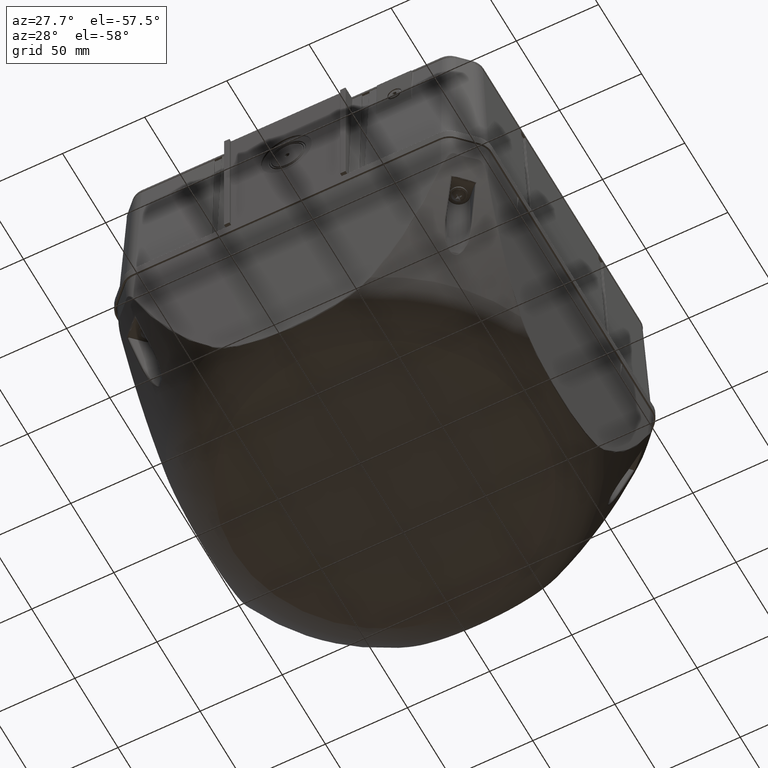
[diagram: clean part render]
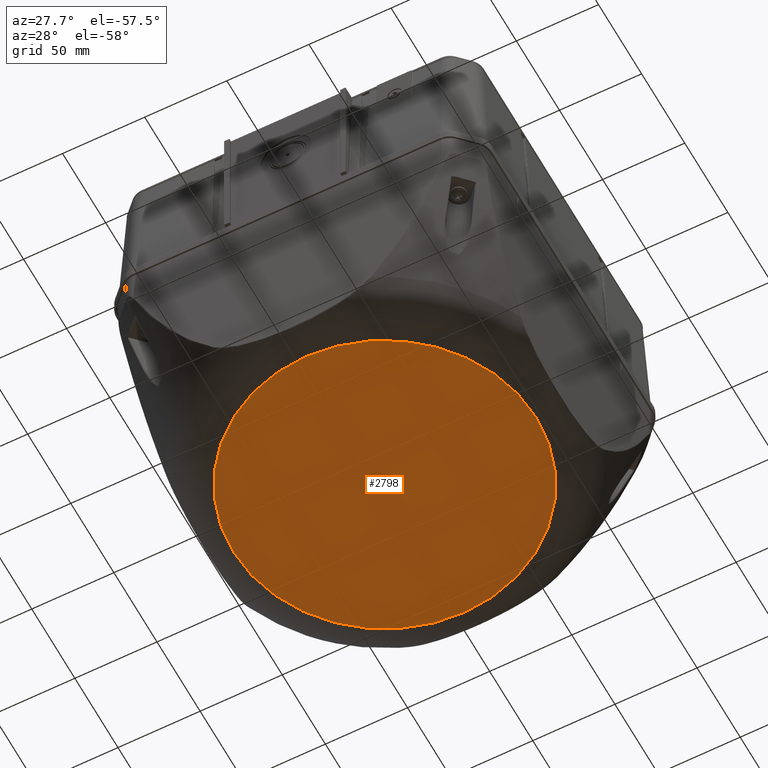
[diagram: same view with one face highlighted and labeled with its STEP entity id]
A machine part, auxiliary view. The second image highlights one B-rep face of the part: STEP entity #2798.
In plain terms, the highlighted spherical surface has radius 350 mm.
Its self-contained STEP definition (entity closure, byte-faithful):
#651=SPHERICAL_SURFACE('',#21512,350.);
#1474=FACE_OUTER_BOUND('',#4871,.T.);
#2798=ADVANCED_FACE('',(#1474),#651,.T.);
#4871=EDGE_LOOP('',(#9386));
#9386=ORIENTED_EDGE('',*,*,#17286,.T.);
#15495=VERTEX_POINT('',#31245);
#17286=EDGE_CURVE('',#15495,#15495,#20285,.T.);
#20285=CIRCLE('',#21502,92.1963707427288);
#21502=AXIS2_PLACEMENT_3D('',#31244,#24259,#24260);
#21512=AXIS2_PLACEMENT_3D('',#32123,#24279,#24280);
#24259=DIRECTION('',(0.,0.,1.));
#24260=DIRECTION('',(1.,0.,0.));
#24279=DIRECTION('',(7.93016446160826E-017,0.,1.));
#24280=DIRECTION('',(1.,0.,0.));
#31244=CARTESIAN_POINT('',(-228.4,-1.59834060049768E-014,210.302583689945));
#31245=CARTESIAN_POINT('',(-136.203629257271,-1.59834060049768E-014,210.302583689945));
#32123=CARTESIAN_POINT('',(-228.4,-1.59834060049768E-014,-127.336023732058));